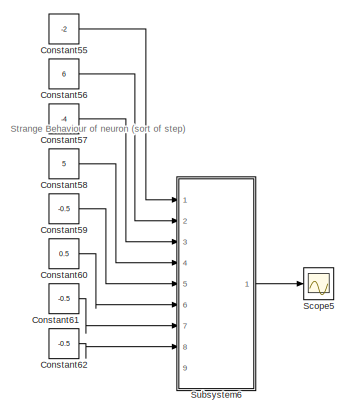
[diagram: root canvas - part 1/4, top right region]
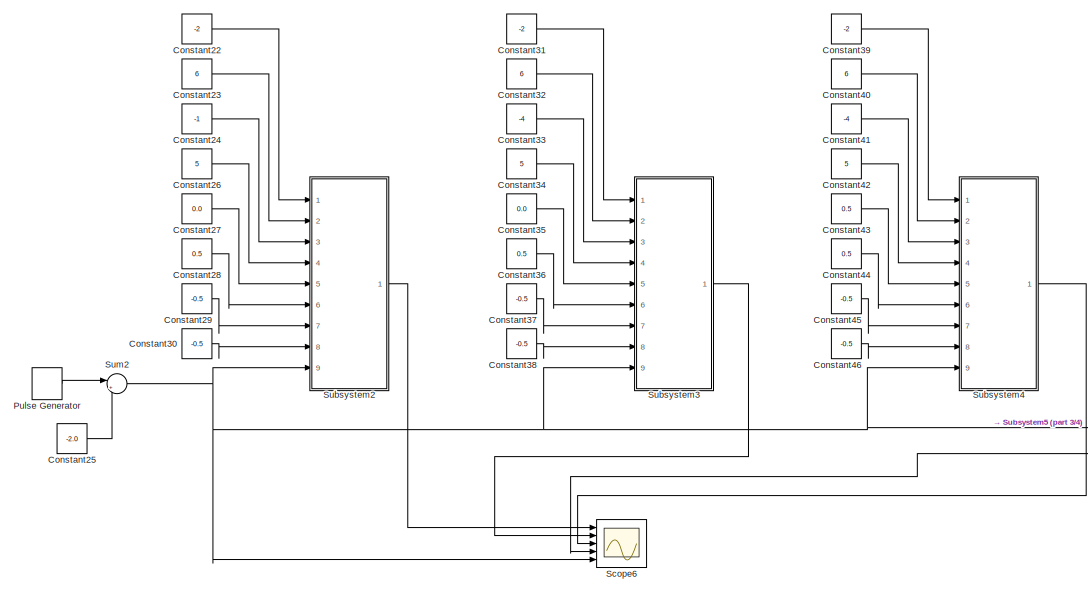
[diagram: root canvas - part 2/4, middle left region]
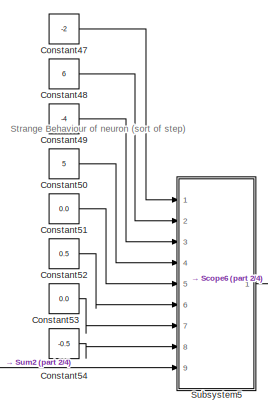
[diagram: root canvas - part 3/4, central region]
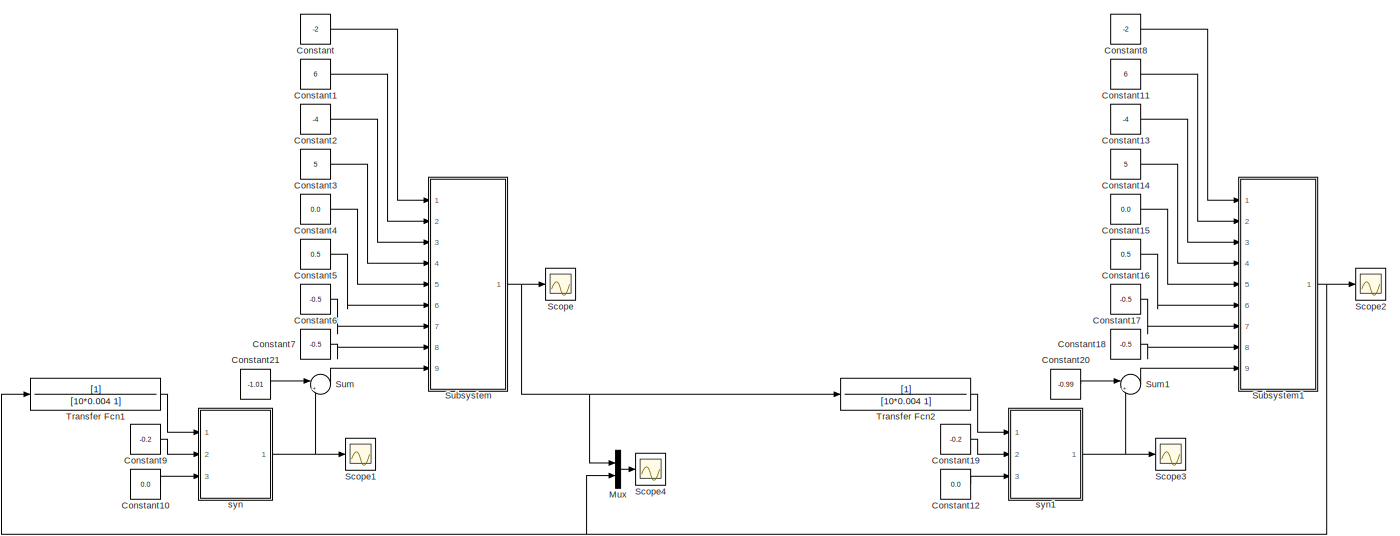
[diagram: root canvas - part 4/4, bottom left region]
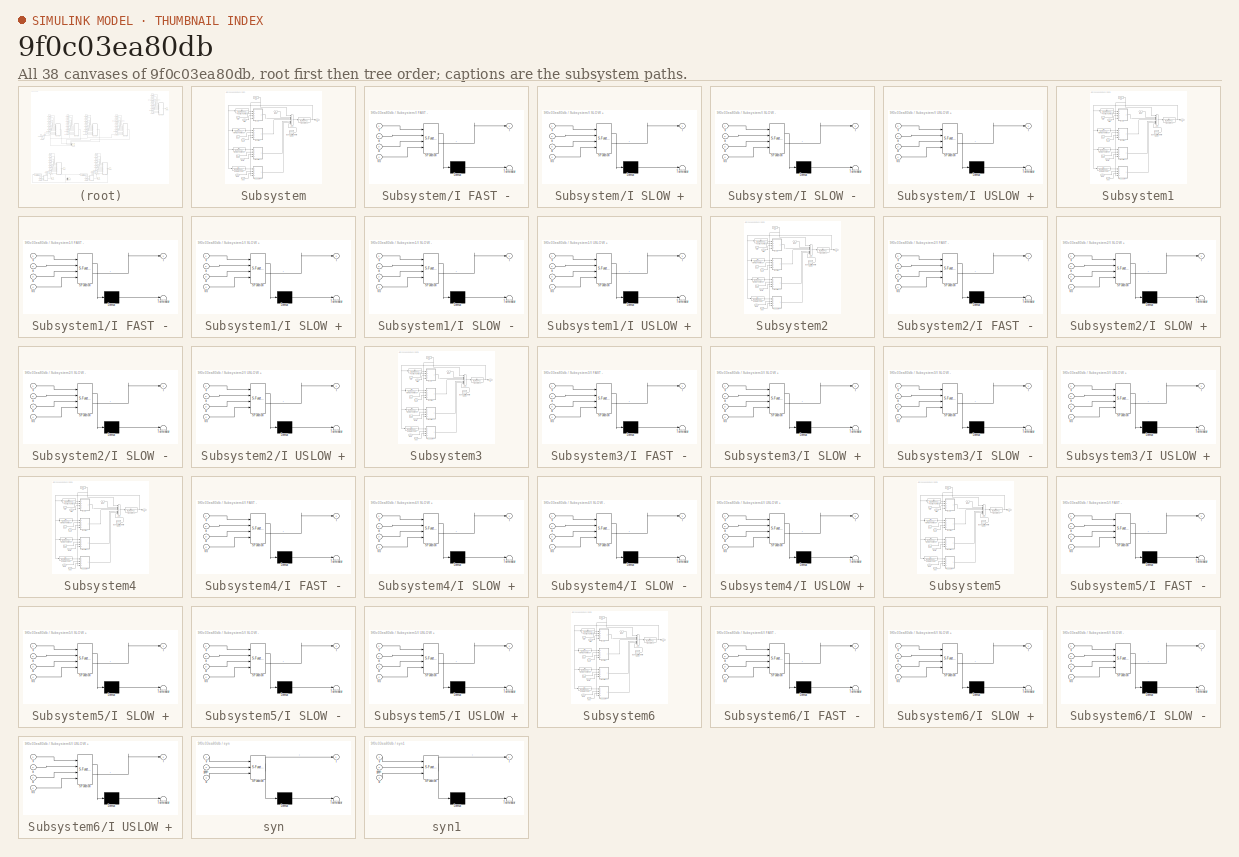
[diagram: thumbnail index - all 38 canvases of the model, root first then tree order]
MODEL slx_9f0c03ea80db
KIND model
CONFIG AbsTol = auto
CONFIG EnableMultiTasking = off
CONFIG FixedStep = auto
CONFIG MaxStep = auto
CONFIG MinStep = auto
CONFIG RelTol = 1e-3
CONFIG SampleTimeConstraint = Unconstrained
CONFIG SolverName = VariableStepAuto
CONFIG StartTime = 0.0
CONFIG StopTime = 30
BLOCK [Constant] Constant
  Value = -2
BLOCK [Constant] Constant1
  Value = 6
BLOCK [Constant] Constant10
  Value = 0.0
BLOCK [Constant] Constant11
  Value = 6
BLOCK [Constant] Constant12
  Value = 0.0
BLOCK [Constant] Constant13
  Value = -4
BLOCK [Constant] Constant14
  Value = 5
BLOCK [Constant] Constant15
  Value = 0.0
BLOCK [Constant] Constant16
  Value = 0.5
BLOCK [Constant] Constant17
  Value = -0.5
BLOCK [Constant] Constant18
  Value = -0.5
BLOCK [Constant] Constant19
  Value = -0.2
BLOCK [Constant] Constant2
  Value = -4
BLOCK [Constant] Constant20
  Value = -0.99
BLOCK [Constant] Constant21
  Value = -1.01
BLOCK [Constant] Constant22
  Value = -2
BLOCK [Constant] Constant23
  Value = 6
BLOCK [Constant] Constant24
  Value = -1
BLOCK [Constant] Constant25
  Value = -2.0
BLOCK [Constant] Constant26
  Value = 5
BLOCK [Constant] Constant27
  Value = 0.0
BLOCK [Constant] Constant28
  Value = 0.5
BLOCK [Constant] Constant29
  Value = -0.5
BLOCK [Constant] Constant3
  Value = 5
BLOCK [Constant] Constant30
  Value = -0.5
BLOCK [Constant] Constant31
  Value = -2
BLOCK [Constant] Constant32
  Value = 6
BLOCK [Constant] Constant33
  Value = -4
BLOCK [Constant] Constant34
  Value = 5
BLOCK [Constant] Constant35
  Value = 0.0
BLOCK [Constant] Constant36
  Value = 0.5
BLOCK [Constant] Constant37
  Value = -0.5
BLOCK [Constant] Constant38
  Value = -0.5
BLOCK [Constant] Constant39
  Value = -2
BLOCK [Constant] Constant4
  Value = 0.0
BLOCK [Constant] Constant40
  Value = 6
BLOCK [Constant] Constant41
  Value = -4
BLOCK [Constant] Constant42
  Value = 5
BLOCK [Constant] Constant43
  Value = 0.5
BLOCK [Constant] Constant44
  Value = 0.5
BLOCK [Constant] Constant45
  Value = -0.5
BLOCK [Constant] Constant46
  Value = -0.5
BLOCK [Constant] Constant47
  Value = -2
BLOCK [Constant] Constant48
  Value = 6
BLOCK [Constant] Constant49
  Value = -4
BLOCK [Constant] Constant5
  Value = 0.5
BLOCK [Constant] Constant50
  Value = 5
BLOCK [Constant] Constant51
  Value = 0.0
BLOCK [Constant] Constant52
  Value = 0.5
BLOCK [Constant] Constant53
  Value = 0.0
BLOCK [Constant] Constant54
  Value = -0.5
BLOCK [Constant] Constant55
  Value = -2
BLOCK [Constant] Constant56
  Value = 6
BLOCK [Constant] Constant57
  Value = -4
BLOCK [Constant] Constant58
  Value = 5
BLOCK [Constant] Constant59
  Value = -0.5
BLOCK [Constant] Constant6
  Value = -0.5
BLOCK [Constant] Constant60
  Value = 0.5
BLOCK [Constant] Constant61
  Value = -0.5
BLOCK [Constant] Constant62
  Value = -0.5
BLOCK [Constant] Constant7
  Value = -0.5
BLOCK [Constant] Constant8
  Value = -2
BLOCK [Constant] Constant9
  Value = -0.2
BLOCK [Mux] Mux
  DisplayOption = bar
  Inputs = 2
  Ports = [2, 1]
BLOCK [DiscretePulseGenerator] Pulse Generator
  Amplitude = 5
  Ports = [0, 1]
  PulseType = Time based
BLOCK [Scope] Scope
  Floating = off
  NumInputPorts = 1
  Ports = [1]
  ScopeSpecificationString = Simulink.scopes.TimeScopeBlockCfg('CurrentConfiguration', extmgr.ConfigurationSet(extmgr.Configuration('Core','General UI',true),extmgr.Configuration('Core','Source UI',true),extmgr.Configuration('Sources','WiredSimulink',true),extmgr.Configuration('Visuals','Time Domain',true,'SerializedDisplays',{struct('MinYLimReal','-4.0521','MaxYLimReal','4.7607','YLabelReal','','MinYLimMag','0.00000','MaxYLi...<+1371ch>
BLOCK [Scope] Scope1
  Floating = off
  NumInputPorts = 1
  Ports = [1]
  ScopeSpecificationString = Simulink.scopes.TimeScopeBlockCfg('CurrentConfiguration', extmgr.ConfigurationSet(extmgr.Configuration('Core','General UI',true),extmgr.Configuration('Core','Source UI',true),extmgr.Configuration('Sources','WiredSimulink',true,'DataLoggingVariableName','ScopeData1'),extmgr.Configuration('Visuals','Time Domain',true,'SerializedDisplays',{struct('MinYLimReal','-0.38276','MaxYLimReal','0.42856','YLab...<+1434ch>
BLOCK [Scope] Scope2
  Floating = off
  NumInputPorts = 1
  Ports = [1]
  ScopeSpecificationString = Simulink.scopes.TimeScopeBlockCfg('CurrentConfiguration', extmgr.ConfigurationSet(extmgr.Configuration('Core','General UI',true),extmgr.Configuration('Core','Source UI',true),extmgr.Configuration('Sources','WiredSimulink',true,'DataLoggingVariableName','ScopeData2'),extmgr.Configuration('Visuals','Time Domain',true,'SerializedDisplays',{struct('MinYLimReal','-7.78674','MaxYLimReal','5.91541','YLab...<+1417ch>
BLOCK [Scope] Scope3
  Floating = off
  NumInputPorts = 1
  Ports = [1]
  ScopeSpecificationString = Simulink.scopes.TimeScopeBlockCfg('CurrentConfiguration', extmgr.ConfigurationSet(extmgr.Configuration('Core','General UI',true),extmgr.Configuration('Core','Source UI',true),extmgr.Configuration('Sources','WiredSimulink',true,'DataLoggingVariableName','ScopeData3'),extmgr.Configuration('Visuals','Time Domain',true,'SerializedDisplays',{struct('MinYLimReal','-0.26054','MaxYLimReal','0.01487','YLab...<+1434ch>
BLOCK [Scope] Scope4
  Floating = off
  NumInputPorts = 1
  Ports = [1]
  ScopeSpecificationString = Simulink.scopes.TimeScopeBlockCfg('CurrentConfiguration', extmgr.ConfigurationSet(extmgr.Configuration('Core','General UI',true),extmgr.Configuration('Core','Source UI',true),extmgr.Configuration('Sources','WiredSimulink',true,'DataLoggingVariableName','ScopeData4'),extmgr.Configuration('Visuals','Time Domain',true,'SerializedDisplays',{struct('MinYLimReal','-9.35544','MaxYLimReal','5.85318','YLab...<+1460ch>
BLOCK [Scope] Scope5
  Floating = off
  NumInputPorts = 1
  Ports = [1]
  ScopeSpecificationString = Simulink.scopes.TimeScopeBlockCfg('CurrentConfiguration', extmgr.ConfigurationSet(extmgr.Configuration('Core','General UI',true),extmgr.Configuration('Core','Source UI',true),extmgr.Configuration('Sources','WiredSimulink',true,'DataLoggingVariableName','ScopeData1'),extmgr.Configuration('Visuals','Time Domain',true,'SerializedDisplays',{struct('MinYLimReal','-9.35544','MaxYLimReal','5.85318','YLab...<+1460ch>
BLOCK [Scope] Scope6
  Floating = off
  NumInputPorts = 5
  Ports = [5]
  ScopeSpecificationString = Simulink.scopes.TimeScopeBlockCfg('CurrentConfiguration', extmgr.ConfigurationSet(extmgr.Configuration('Core','General UI',true),extmgr.Configuration('Core','Source UI',true),extmgr.Configuration('Sources','WiredSimulink',true,'DataLoggingVariableName','ScopeData2'),extmgr.Configuration('Visuals','Time Domain',true,'SerializedDisplays',{struct('MinYLimReal','-8.1357','MaxYLimReal','8.97831','YLabe...<+4791ch>
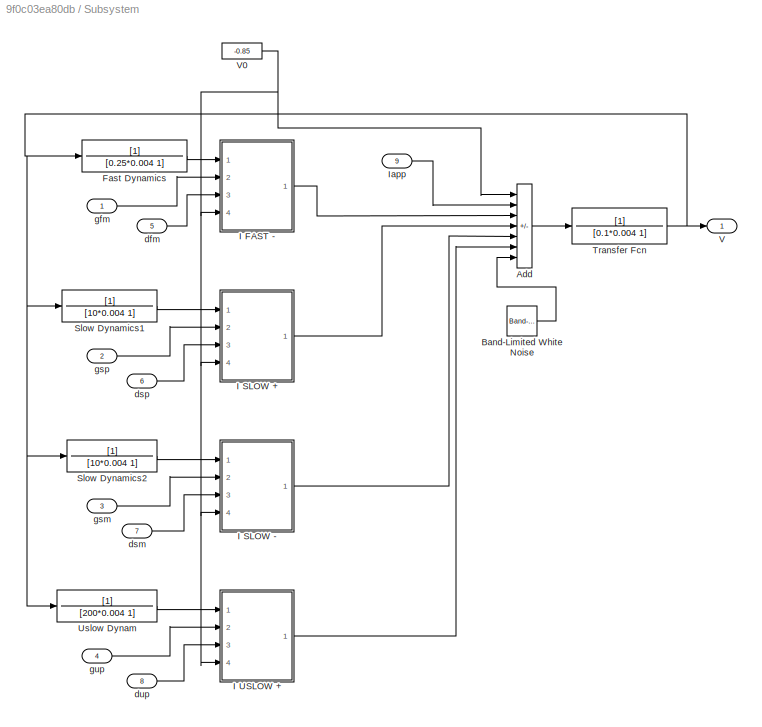
BLOCK [SubSystem] Subsystem
  Ports = [9, 1]
  RequestExecContextInheritance = off
BLOCK [Sum] Subsystem/Add
  IconShape = rectangular
  Inputs = ++----+
  Ports = [7, 1]
BLOCK [Reference] Subsystem/Band-Limited White Noise  REF=simulink/Sources/Band-Limited
White Noise
  Ports = [0, 1]
  SourceBlock = simulink/Sources/Band-Limited\nWhite Noise
  SourceProductBaseCode = SL
  SourceType = Band-Limited White Noise.
BLOCK [TransferFcn] Subsystem/Fast Dynamics
  Denominator = [0.25*0.004 1]
BLOCK [SubSystem] Subsystem/I FAST -
  ErrorFcn = Stateflow.Translate.translate
  PermitHierarchicalResolution = ExplicitOnly
  Ports = [4, 1]
  RequestExecContextInheritance = off
  SFBlockType = MATLAB Function
  TreatAsAtomicUnit = on
BLOCK [Demux] Subsystem/I FAST -/ Demux 
  Outputs = 1
  Ports = [1, 1]
BLOCK [S-Function] Subsystem/I FAST -/ SFunction 
  EnableBusSupport = on
  FunctionName = sf_sfun
  PortCounts = [4 2]
  Ports = [4, 2]
  SFcnIsStateOwnerBlock = off
  SFunctionDeploymentMode = off
  Tag = Stateflow S-Function 2
BLOCK [Terminator] Subsystem/I FAST -/ Terminator 
BLOCK [Outport] Subsystem/I FAST -/I
BLOCK [Inport] Subsystem/I FAST -/V
BLOCK [Inport] Subsystem/I FAST -/V0
  Port = 4
BLOCK [Inport] Subsystem/I FAST -/a
  Port = 2
BLOCK [Inport] Subsystem/I FAST -/d
  Port = 3
BLOCK [SubSystem] Subsystem/I SLOW +
  ErrorFcn = Stateflow.Translate.translate
  PermitHierarchicalResolution = ExplicitOnly
  Ports = [4, 1]
  RequestExecContextInheritance = off
  SFBlockType = MATLAB Function
  TreatAsAtomicUnit = on
BLOCK [Demux] Subsystem/I SLOW +/ Demux 
  Outputs = 1
  Ports = [1, 1]
BLOCK [S-Function] Subsystem/I SLOW +/ SFunction 
  EnableBusSupport = on
  FunctionName = sf_sfun
  PortCounts = [4 2]
  Ports = [4, 2]
  SFcnIsStateOwnerBlock = off
  SFunctionDeploymentMode = off
  Tag = Stateflow S-Function 1
BLOCK [Terminator] Subsystem/I SLOW +/ Terminator 
BLOCK [Outport] Subsystem/I SLOW +/I
BLOCK [Inport] Subsystem/I SLOW +/V
BLOCK [Inport] Subsystem/I SLOW +/V0
  Port = 4
BLOCK [Inport] Subsystem/I SLOW +/a
  Port = 2
BLOCK [Inport] Subsystem/I SLOW +/d
  Port = 3
BLOCK [SubSystem] Subsystem/I SLOW -
  ErrorFcn = Stateflow.Translate.translate
  PermitHierarchicalResolution = ExplicitOnly
  Ports = [4, 1]
  RequestExecContextInheritance = off
  SFBlockType = MATLAB Function
  TreatAsAtomicUnit = on
BLOCK [Demux] Subsystem/I SLOW -/ Demux 
  Outputs = 1
  Ports = [1, 1]
BLOCK [S-Function] Subsystem/I SLOW -/ SFunction 
  EnableBusSupport = on
  FunctionName = sf_sfun
  PortCounts = [4 2]
  Ports = [4, 2]
  SFcnIsStateOwnerBlock = off
  SFunctionDeploymentMode = off
  Tag = Stateflow S-Function 3
BLOCK [Terminator] Subsystem/I SLOW -/ Terminator 
BLOCK [Outport] Subsystem/I SLOW -/I
BLOCK [Inport] Subsystem/I SLOW -/V
BLOCK [Inport] Subsystem/I SLOW -/V0
  Port = 4
BLOCK [Inport] Subsystem/I SLOW -/a
  Port = 2
BLOCK [Inport] Subsystem/I SLOW -/d
  Port = 3
BLOCK [SubSystem] Subsystem/I USLOW +
  ErrorFcn = Stateflow.Translate.translate
  PermitHierarchicalResolution = ExplicitOnly
  Ports = [4, 1]
  RequestExecContextInheritance = off
  SFBlockType = MATLAB Function
  TreatAsAtomicUnit = on
BLOCK [Demux] Subsystem/I USLOW +/ Demux 
  Outputs = 1
  Ports = [1, 1]
BLOCK [S-Function] Subsystem/I USLOW +/ SFunction 
  EnableBusSupport = on
  FunctionName = sf_sfun
  PortCounts = [4 2]
  Ports = [4, 2]
  SFcnIsStateOwnerBlock = off
  SFunctionDeploymentMode = off
  Tag = Stateflow S-Function 4
BLOCK [Terminator] Subsystem/I USLOW +/ Terminator 
BLOCK [Outport] Subsystem/I USLOW +/I
BLOCK [Inport] Subsystem/I USLOW +/V
BLOCK [Inport] Subsystem/I USLOW +/V0
  Port = 4
BLOCK [Inport] Subsystem/I USLOW +/a
  Port = 2
BLOCK [Inport] Subsystem/I USLOW +/d
  Port = 3
BLOCK [Inport] Subsystem/Iapp
  Port = 9
BLOCK [TransferFcn] Subsystem/Slow Dynamics1
  Denominator = [10*0.004 1]
BLOCK [TransferFcn] Subsystem/Slow Dynamics2
  Denominator = [10*0.004 1]
BLOCK [TransferFcn] Subsystem/Transfer Fcn
  Denominator = [0.1*0.004 1]
BLOCK [TransferFcn] Subsystem/Uslow Dynam
  Denominator = [200*0.004 1]
BLOCK [Outport] Subsystem/V
BLOCK [Constant] Subsystem/V0
  Value = -0.85
BLOCK [Inport] Subsystem/dfm
  Port = 5
BLOCK [Inport] Subsystem/dsm
  Port = 7
BLOCK [Inport] Subsystem/dsp
  Port = 6
BLOCK [Inport] Subsystem/dup
  Port = 8
BLOCK [Inport] Subsystem/gfm
BLOCK [Inport] Subsystem/gsm
  Port = 3
BLOCK [Inport] Subsystem/gsp
  Port = 2
BLOCK [Inport] Subsystem/gup
  Port = 4
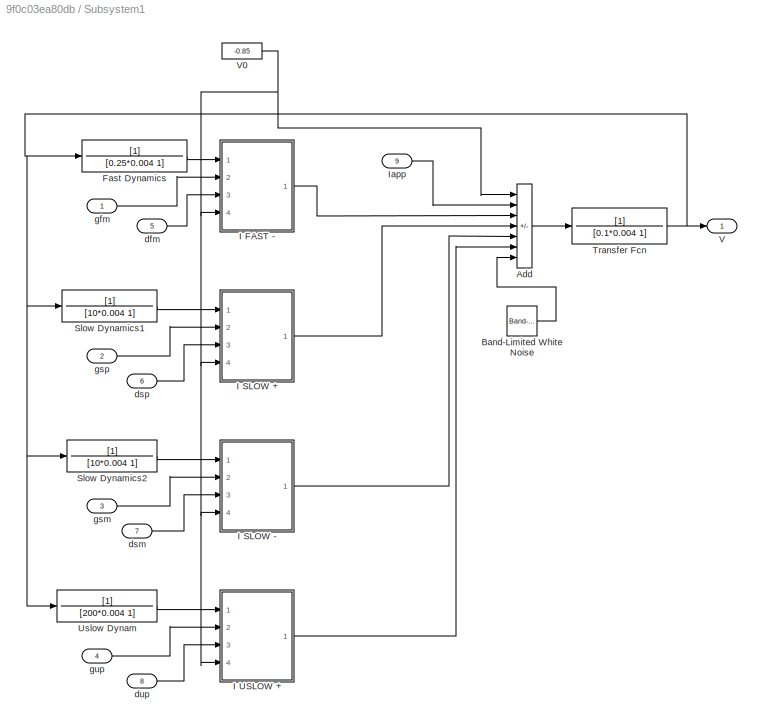
BLOCK [SubSystem] Subsystem1
  Ports = [9, 1]
  RequestExecContextInheritance = off
BLOCK [Sum] Subsystem1/Add
  IconShape = rectangular
  Inputs = ++----+
  Ports = [7, 1]
BLOCK [Reference] Subsystem1/Band-Limited White Noise  REF=simulink/Sources/Band-Limited
White Noise
  Ports = [0, 1]
  SourceBlock = simulink/Sources/Band-Limited\nWhite Noise
  SourceProductBaseCode = SL
  SourceType = Band-Limited White Noise.
BLOCK [TransferFcn] Subsystem1/Fast Dynamics
  Denominator = [0.25*0.004 1]
BLOCK [SubSystem] Subsystem1/I FAST -
  ErrorFcn = Stateflow.Translate.translate
  PermitHierarchicalResolution = ExplicitOnly
  Ports = [4, 1]
  RequestExecContextInheritance = off
  SFBlockType = MATLAB Function
  TreatAsAtomicUnit = on
BLOCK [Demux] Subsystem1/I FAST -/ Demux 
  Outputs = 1
  Ports = [1, 1]
BLOCK [S-Function] Subsystem1/I FAST -/ SFunction 
  EnableBusSupport = on
  FunctionName = sf_sfun
  PortCounts = [4 2]
  Ports = [4, 2]
  SFcnIsStateOwnerBlock = off
  SFunctionDeploymentMode = off
  Tag = Stateflow S-Function 5
BLOCK [Terminator] Subsystem1/I FAST -/ Terminator 
BLOCK [Outport] Subsystem1/I FAST -/I
BLOCK [Inport] Subsystem1/I FAST -/V
BLOCK [Inport] Subsystem1/I FAST -/V0
  Port = 4
BLOCK [Inport] Subsystem1/I FAST -/a
  Port = 2
BLOCK [Inport] Subsystem1/I FAST -/d
  Port = 3
BLOCK [SubSystem] Subsystem1/I SLOW +
  ErrorFcn = Stateflow.Translate.translate
  PermitHierarchicalResolution = ExplicitOnly
  Ports = [4, 1]
  RequestExecContextInheritance = off
  SFBlockType = MATLAB Function
  TreatAsAtomicUnit = on
BLOCK [Demux] Subsystem1/I SLOW +/ Demux 
  Outputs = 1
  Ports = [1, 1]
BLOCK [S-Function] Subsystem1/I SLOW +/ SFunction 
  EnableBusSupport = on
  FunctionName = sf_sfun
  PortCounts = [4 2]
  Ports = [4, 2]
  SFcnIsStateOwnerBlock = off
  SFunctionDeploymentMode = off
  Tag = Stateflow S-Function 6
BLOCK [Terminator] Subsystem1/I SLOW +/ Terminator 
BLOCK [Outport] Subsystem1/I SLOW +/I
BLOCK [Inport] Subsystem1/I SLOW +/V
BLOCK [Inport] Subsystem1/I SLOW +/V0
  Port = 4
BLOCK [Inport] Subsystem1/I SLOW +/a
  Port = 2
BLOCK [Inport] Subsystem1/I SLOW +/d
  Port = 3
BLOCK [SubSystem] Subsystem1/I SLOW -
  ErrorFcn = Stateflow.Translate.translate
  PermitHierarchicalResolution = ExplicitOnly
  Ports = [4, 1]
  RequestExecContextInheritance = off
  SFBlockType = MATLAB Function
  TreatAsAtomicUnit = on
BLOCK [Demux] Subsystem1/I SLOW -/ Demux 
  Outputs = 1
  Ports = [1, 1]
BLOCK [S-Function] Subsystem1/I SLOW -/ SFunction 
  EnableBusSupport = on
  FunctionName = sf_sfun
  PortCounts = [4 2]
  Ports = [4, 2]
  SFcnIsStateOwnerBlock = off
  SFunctionDeploymentMode = off
  Tag = Stateflow S-Function 7
BLOCK [Terminator] Subsystem1/I SLOW -/ Terminator 
BLOCK [Outport] Subsystem1/I SLOW -/I
BLOCK [Inport] Subsystem1/I SLOW -/V
BLOCK [Inport] Subsystem1/I SLOW -/V0
  Port = 4
BLOCK [Inport] Subsystem1/I SLOW -/a
  Port = 2
BLOCK [Inport] Subsystem1/I SLOW -/d
  Port = 3
BLOCK [SubSystem] Subsystem1/I USLOW +
  ErrorFcn = Stateflow.Translate.translate
  PermitHierarchicalResolution = ExplicitOnly
  Ports = [4, 1]
  RequestExecContextInheritance = off
  SFBlockType = MATLAB Function
  TreatAsAtomicUnit = on
BLOCK [Demux] Subsystem1/I USLOW +/ Demux 
  Outputs = 1
  Ports = [1, 1]
BLOCK [S-Function] Subsystem1/I USLOW +/ SFunction 
  EnableBusSupport = on
  FunctionName = sf_sfun
  PortCounts = [4 2]
  Ports = [4, 2]
  SFcnIsStateOwnerBlock = off
  SFunctionDeploymentMode = off
  Tag = Stateflow S-Function 8
BLOCK [Terminator] Subsystem1/I USLOW +/ Terminator 
BLOCK [Outport] Subsystem1/I USLOW +/I
BLOCK [Inport] Subsystem1/I USLOW +/V
BLOCK [Inport] Subsystem1/I USLOW +/V0
  Port = 4
BLOCK [Inport] Subsystem1/I USLOW +/a
  Port = 2
BLOCK [Inport] Subsystem1/I USLOW +/d
  Port = 3
BLOCK [Inport] Subsystem1/Iapp
  Port = 9
BLOCK [TransferFcn] Subsystem1/Slow Dynamics1
  Denominator = [10*0.004 1]
BLOCK [TransferFcn] Subsystem1/Slow Dynamics2
  Denominator = [10*0.004 1]
BLOCK [TransferFcn] Subsystem1/Transfer Fcn
  Denominator = [0.1*0.004 1]
BLOCK [TransferFcn] Subsystem1/Uslow Dynam
  Denominator = [200*0.004 1]
BLOCK [Outport] Subsystem1/V
BLOCK [Constant] Subsystem1/V0
  Value = -0.85
BLOCK [Inport] Subsystem1/dfm
  Port = 5
BLOCK [Inport] Subsystem1/dsm
  Port = 7
BLOCK [Inport] Subsystem1/dsp
  Port = 6
BLOCK [Inport] Subsystem1/dup
  Port = 8
BLOCK [Inport] Subsystem1/gfm
BLOCK [Inport] Subsystem1/gsm
  Port = 3
BLOCK [Inport] Subsystem1/gsp
  Port = 2
BLOCK [Inport] Subsystem1/gup
  Port = 4
BLOCK [SubSystem] Subsystem2
  Ports = [9, 1]
  RequestExecContextInheritance = off
BLOCK [Sum] Subsystem2/Add
  IconShape = rectangular
  Inputs = ++----+
  Ports = [7, 1]
BLOCK [Reference] Subsystem2/Band-Limited White Noise  REF=simulink/Sources/Band-Limited
White Noise
  Ports = [0, 1]
  SourceBlock = simulink/Sources/Band-Limited\nWhite Noise
  SourceProductBaseCode = SL
  SourceType = Band-Limited White Noise.
BLOCK [TransferFcn] Subsystem2/Fast Dynamics
  Denominator = [0.25*0.004 1]
BLOCK [SubSystem] Subsystem2/I FAST -
  ErrorFcn = Stateflow.Translate.translate
  PermitHierarchicalResolution = ExplicitOnly
  Ports = [4, 1]
  RequestExecContextInheritance = off
  SFBlockType = MATLAB Function
  TreatAsAtomicUnit = on
BLOCK [Demux] Subsystem2/I FAST -/ Demux 
  Outputs = 1
  Ports = [1, 1]
BLOCK [S-Function] Subsystem2/I FAST -/ SFunction 
  EnableBusSupport = on
  FunctionName = sf_sfun
  PortCounts = [4 2]
  Ports = [4, 2]
  SFcnIsStateOwnerBlock = off
  SFunctionDeploymentMode = off
  Tag = Stateflow S-Function 11
BLOCK [Terminator] Subsystem2/I FAST -/ Terminator 
BLOCK [Outport] Subsystem2/I FAST -/I
BLOCK [Inport] Subsystem2/I FAST -/V
BLOCK [Inport] Subsystem2/I FAST -/V0
  Port = 4
BLOCK [Inport] Subsystem2/I FAST -/a
  Port = 2
BLOCK [Inport] Subsystem2/I FAST -/d
  Port = 3
BLOCK [SubSystem] Subsystem2/I SLOW +
  ErrorFcn = Stateflow.Translate.translate
  PermitHierarchicalResolution = ExplicitOnly
  Ports = [4, 1]
  RequestExecContextInheritance = off
  SFBlockType = MATLAB Function
  TreatAsAtomicUnit = on
BLOCK [Demux] Subsystem2/I SLOW +/ Demux 
  Outputs = 1
  Ports = [1, 1]
BLOCK [S-Function] Subsystem2/I SLOW +/ SFunction 
  EnableBusSupport = on
  FunctionName = sf_sfun
  PortCounts = [4 2]
  Ports = [4, 2]
  SFcnIsStateOwnerBlock = off
  SFunctionDeploymentMode = off
  Tag = Stateflow S-Function 12
BLOCK [Terminator] Subsystem2/I SLOW +/ Terminator 
BLOCK [Outport] Subsystem2/I SLOW +/I
BLOCK [Inport] Subsystem2/I SLOW +/V
BLOCK [Inport] Subsystem2/I SLOW +/V0
  Port = 4
BLOCK [Inport] Subsystem2/I SLOW +/a
  Port = 2
BLOCK [Inport] Subsystem2/I SLOW +/d
  Port = 3
BLOCK [SubSystem] Subsystem2/I SLOW -
  ErrorFcn = Stateflow.Translate.translate
  PermitHierarchicalResolution = ExplicitOnly
  Ports = [4, 1]
  RequestExecContextInheritance = off
  SFBlockType = MATLAB Function
  TreatAsAtomicUnit = on
BLOCK [Demux] Subsystem2/I SLOW -/ Demux 
  Outputs = 1
  Ports = [1, 1]
BLOCK [S-Function] Subsystem2/I SLOW -/ SFunction 
  EnableBusSupport = on
  FunctionName = sf_sfun
  PortCounts = [4 2]
  Ports = [4, 2]
  SFcnIsStateOwnerBlock = off
  SFunctionDeploymentMode = off
  Tag = Stateflow S-Function 13
BLOCK [Terminator] Subsystem2/I SLOW -/ Terminator 
BLOCK [Outport] Subsystem2/I SLOW -/I
BLOCK [Inport] Subsystem2/I SLOW -/V
BLOCK [Inport] Subsystem2/I SLOW -/V0
  Port = 4
BLOCK [Inport] Subsystem2/I SLOW -/a
  Port = 2
BLOCK [Inport] Subsystem2/I SLOW -/d
  Port = 3
BLOCK [SubSystem] Subsystem2/I USLOW +
  ErrorFcn = Stateflow.Translate.translate
  PermitHierarchicalResolution = ExplicitOnly
  Ports = [4, 1]
  RequestExecContextInheritance = off
  SFBlockType = MATLAB Function
  TreatAsAtomicUnit = on
BLOCK [Demux] Subsystem2/I USLOW +/ Demux 
  Outputs = 1
  Ports = [1, 1]
BLOCK [S-Function] Subsystem2/I USLOW +/ SFunction 
  EnableBusSupport = on
  FunctionName = sf_sfun
  PortCounts = [4 2]
  Ports = [4, 2]
  SFcnIsStateOwnerBlock = off
  SFunctionDeploymentMode = off
  Tag = Stateflow S-Function 14
BLOCK [Terminator] Subsystem2/I USLOW +/ Terminator 
BLOCK [Outport] Subsystem2/I USLOW +/I
BLOCK [Inport] Subsystem2/I USLOW +/V
BLOCK [Inport] Subsystem2/I USLOW +/V0
  Port = 4
BLOCK [Inport] Subsystem2/I USLOW +/a
  Port = 2
BLOCK [Inport] Subsystem2/I USLOW +/d
  Port = 3
BLOCK [Inport] Subsystem2/Iapp
  Port = 9
BLOCK [TransferFcn] Subsystem2/Slow Dynamics1
  Denominator = [10*0.004 1]
BLOCK [TransferFcn] Subsystem2/Slow Dynamics2
  Denominator = [10*0.004 1]
BLOCK [TransferFcn] Subsystem2/Transfer Fcn
  Denominator = [0.1*0.004 1]
BLOCK [TransferFcn] Subsystem2/Uslow Dynam
  Denominator = [200*0.004 1]
BLOCK [Outport] Subsystem2/V
BLOCK [Constant] Subsystem2/V0
  Value = -0.85
BLOCK [Inport] Subsystem2/dfm
  Port = 5
BLOCK [Inport] Subsystem2/dsm
  Port = 7
BLOCK [Inport] Subsystem2/dsp
  Port = 6
BLOCK [Inport] Subsystem2/dup
  Port = 8
BLOCK [Inport] Subsystem2/gfm
BLOCK [Inport] Subsystem2/gsm
  Port = 3
BLOCK [Inport] Subsystem2/gsp
  Port = 2
BLOCK [Inport] Subsystem2/gup
  Port = 4
BLOCK [SubSystem] Subsystem3
  Ports = [9, 1]
  RequestExecContextInheritance = off
BLOCK [Sum] Subsystem3/Add
  IconShape = rectangular
  Inputs = ++----+
  Ports = [7, 1]
BLOCK [Reference] Subsystem3/Band-Limited White Noise  REF=simulink/Sources/Band-Limited
White Noise
  Ports = [0, 1]
  SourceBlock = simulink/Sources/Band-Limited\nWhite Noise
  SourceProductBaseCode = SL
  SourceType = Band-Limited White Noise.
BLOCK [TransferFcn] Subsystem3/Fast Dynamics
  Denominator = [0.25*0.004 1]
BLOCK [SubSystem] Subsystem3/I FAST -
  ErrorFcn = Stateflow.Translate.translate
  PermitHierarchicalResolution = ExplicitOnly
  Ports = [4, 1]
  RequestExecContextInheritance = off
  SFBlockType = MATLAB Function
  TreatAsAtomicUnit = on
BLOCK [Demux] Subsystem3/I FAST -/ Demux 
  Outputs = 1
  Ports = [1, 1]
BLOCK [S-Function] Subsystem3/I FAST -/ SFunction 
  EnableBusSupport = on
  FunctionName = sf_sfun
  PortCounts = [4 2]
  Ports = [4, 2]
  SFcnIsStateOwnerBlock = off
  SFunctionDeploymentMode = off
  Tag = Stateflow S-Function 15
BLOCK [Terminator] Subsystem3/I FAST -/ Terminator 
BLOCK [Outport] Subsystem3/I FAST -/I
BLOCK [Inport] Subsystem3/I FAST -/V
BLOCK [Inport] Subsystem3/I FAST -/V0
  Port = 4
BLOCK [Inport] Subsystem3/I FAST -/a
  Port = 2
BLOCK [Inport] Subsystem3/I FAST -/d
  Port = 3
BLOCK [SubSystem] Subsystem3/I SLOW +
  ErrorFcn = Stateflow.Translate.translate
  PermitHierarchicalResolution = ExplicitOnly
  Ports = [4, 1]
  RequestExecContextInheritance = off
  SFBlockType = MATLAB Function
  TreatAsAtomicUnit = on
BLOCK [Demux] Subsystem3/I SLOW +/ Demux 
  Outputs = 1
  Ports = [1, 1]
BLOCK [S-Function] Subsystem3/I SLOW +/ SFunction 
  EnableBusSupport = on
  FunctionName = sf_sfun
  PortCounts = [4 2]
  Ports = [4, 2]
  SFcnIsStateOwnerBlock = off
  SFunctionDeploymentMode = off
  Tag = Stateflow S-Function 16
BLOCK [Terminator] Subsystem3/I SLOW +/ Terminator 
BLOCK [Outport] Subsystem3/I SLOW +/I
BLOCK [Inport] Subsystem3/I SLOW +/V
BLOCK [Inport] Subsystem3/I SLOW +/V0
  Port = 4
BLOCK [Inport] Subsystem3/I SLOW +/a
  Port = 2
BLOCK [Inport] Subsystem3/I SLOW +/d
  Port = 3
BLOCK [SubSystem] Subsystem3/I SLOW -
  ErrorFcn = Stateflow.Translate.translate
  PermitHierarchicalResolution = ExplicitOnly
  Ports = [4, 1]
  RequestExecContextInheritance = off
  SFBlockType = MATLAB Function
  TreatAsAtomicUnit = on
BLOCK [Demux] Subsystem3/I SLOW -/ Demux 
  Outputs = 1
  Ports = [1, 1]
BLOCK [S-Function] Subsystem3/I SLOW -/ SFunction 
  EnableBusSupport = on
  FunctionName = sf_sfun
  PortCounts = [4 2]
  Ports = [4, 2]
  SFcnIsStateOwnerBlock = off
  SFunctionDeploymentMode = off
  Tag = Stateflow S-Function 17
BLOCK [Terminator] Subsystem3/I SLOW -/ Terminator 
BLOCK [Outport] Subsystem3/I SLOW -/I
BLOCK [Inport] Subsystem3/I SLOW -/V
BLOCK [Inport] Subsystem3/I SLOW -/V0
  Port = 4
BLOCK [Inport] Subsystem3/I SLOW -/a
  Port = 2
BLOCK [Inport] Subsystem3/I SLOW -/d
  Port = 3
BLOCK [SubSystem] Subsystem3/I USLOW +
  ErrorFcn = Stateflow.Translate.translate
  PermitHierarchicalResolution = ExplicitOnly
  Ports = [4, 1]
  RequestExecContextInheritance = off
  SFBlockType = MATLAB Function
  TreatAsAtomicUnit = on
BLOCK [Demux] Subsystem3/I USLOW +/ Demux 
  Outputs = 1
  Ports = [1, 1]
BLOCK [S-Function] Subsystem3/I USLOW +/ SFunction 
  EnableBusSupport = on
  FunctionName = sf_sfun
  PortCounts = [4 2]
  Ports = [4, 2]
  SFcnIsStateOwnerBlock = off
  SFunctionDeploymentMode = off
  Tag = Stateflow S-Function 18
BLOCK [Terminator] Subsystem3/I USLOW +/ Terminator 
BLOCK [Outport] Subsystem3/I USLOW +/I
BLOCK [Inport] Subsystem3/I USLOW +/V
BLOCK [Inport] Subsystem3/I USLOW +/V0
  Port = 4
BLOCK [Inport] Subsystem3/I USLOW +/a
  Port = 2
BLOCK [Inport] Subsystem3/I USLOW +/d
  Port = 3
BLOCK [Inport] Subsystem3/Iapp
  Port = 9
BLOCK [TransferFcn] Subsystem3/Slow Dynamics1
  Denominator = [10*0.004 1]
BLOCK [TransferFcn] Subsystem3/Slow Dynamics2
  Denominator = [10*0.004 1]
BLOCK [TransferFcn] Subsystem3/Transfer Fcn
  Denominator = [0.1*0.004 1]
BLOCK [TransferFcn] Subsystem3/Uslow Dynam
  Denominator = [200*0.004 1]
BLOCK [Outport] Subsystem3/V
BLOCK [Constant] Subsystem3/V0
  Value = -0.85
BLOCK [Inport] Subsystem3/dfm
  Port = 5
BLOCK [Inport] Subsystem3/dsm
  Port = 7
BLOCK [Inport] Subsystem3/dsp
  Port = 6
BLOCK [Inport] Subsystem3/dup
  Port = 8
BLOCK [Inport] Subsystem3/gfm
BLOCK [Inport] Subsystem3/gsm
  Port = 3
BLOCK [Inport] Subsystem3/gsp
  Port = 2
BLOCK [Inport] Subsystem3/gup
  Port = 4
BLOCK [SubSystem] Subsystem4
  Ports = [9, 1]
  RequestExecContextInheritance = off
BLOCK [Sum] Subsystem4/Add
  IconShape = rectangular
  Inputs = ++----+
  Ports = [7, 1]
BLOCK [Reference] Subsystem4/Band-Limited White Noise  REF=simulink/Sources/Band-Limited
White Noise
  Ports = [0, 1]
  SourceBlock = simulink/Sources/Band-Limited\nWhite Noise
  SourceProductBaseCode = SL
  SourceType = Band-Limited White Noise.
BLOCK [TransferFcn] Subsystem4/Fast Dynamics
  Denominator = [0.25*0.004 1]
BLOCK [SubSystem] Subsystem4/I FAST -
  ErrorFcn = Stateflow.Translate.translate
  PermitHierarchicalResolution = ExplicitOnly
  Ports = [4, 1]
  RequestExecContextInheritance = off
  SFBlockType = MATLAB Function
  TreatAsAtomicUnit = on
BLOCK [Demux] Subsystem4/I FAST -/ Demux 
  Outputs = 1
  Ports = [1, 1]
BLOCK [S-Function] Subsystem4/I FAST -/ SFunction 
  EnableBusSupport = on
  FunctionName = sf_sfun
  PortCounts = [4 2]
  Ports = [4, 2]
  SFcnIsStateOwnerBlock = off
  SFunctionDeploymentMode = off
  Tag = Stateflow S-Function 19
BLOCK [Terminator] Subsystem4/I FAST -/ Terminator 
BLOCK [Outport] Subsystem4/I FAST -/I
BLOCK [Inport] Subsystem4/I FAST -/V
BLOCK [Inport] Subsystem4/I FAST -/V0
  Port = 4
BLOCK [Inport] Subsystem4/I FAST -/a
  Port = 2
BLOCK [Inport] Subsystem4/I FAST -/d
  Port = 3
BLOCK [SubSystem] Subsystem4/I SLOW +
  ErrorFcn = Stateflow.Translate.translate
  PermitHierarchicalResolution = ExplicitOnly
  Ports = [4, 1]
  RequestExecContextInheritance = off
  SFBlockType = MATLAB Function
  TreatAsAtomicUnit = on
BLOCK [Demux] Subsystem4/I SLOW +/ Demux 
  Outputs = 1
  Ports = [1, 1]
BLOCK [S-Function] Subsystem4/I SLOW +/ SFunction 
  EnableBusSupport = on
  FunctionName = sf_sfun
  PortCounts = [4 2]
  Ports = [4, 2]
  SFcnIsStateOwnerBlock = off
  SFunctionDeploymentMode = off
  Tag = Stateflow S-Function 20
BLOCK [Terminator] Subsystem4/I SLOW +/ Terminator 
BLOCK [Outport] Subsystem4/I SLOW +/I
BLOCK [Inport] Subsystem4/I SLOW +/V
BLOCK [Inport] Subsystem4/I SLOW +/V0
  Port = 4
BLOCK [Inport] Subsystem4/I SLOW +/a
  Port = 2
BLOCK [Inport] Subsystem4/I SLOW +/d
  Port = 3
BLOCK [SubSystem] Subsystem4/I SLOW -
  ErrorFcn = Stateflow.Translate.translate
  PermitHierarchicalResolution = ExplicitOnly
  Ports = [4, 1]
  RequestExecContextInheritance = off
  SFBlockType = MATLAB Function
  TreatAsAtomicUnit = on
BLOCK [Demux] Subsystem4/I SLOW -/ Demux 
  Outputs = 1
  Ports = [1, 1]
BLOCK [S-Function] Subsystem4/I SLOW -/ SFunction 
  EnableBusSupport = on
  FunctionName = sf_sfun
  PortCounts = [4 2]
  Ports = [4, 2]
  SFcnIsStateOwnerBlock = off
  SFunctionDeploymentMode = off
  Tag = Stateflow S-Function 21
BLOCK [Terminator] Subsystem4/I SLOW -/ Terminator 
BLOCK [Outport] Subsystem4/I SLOW -/I
BLOCK [Inport] Subsystem4/I SLOW -/V
BLOCK [Inport] Subsystem4/I SLOW -/V0
  Port = 4
BLOCK [Inport] Subsystem4/I SLOW -/a
  Port = 2
BLOCK [Inport] Subsystem4/I SLOW -/d
  Port = 3
BLOCK [SubSystem] Subsystem4/I USLOW +
  ErrorFcn = Stateflow.Translate.translate
  PermitHierarchicalResolution = ExplicitOnly
  Ports = [4, 1]
  RequestExecContextInheritance = off
  SFBlockType = MATLAB Function
  TreatAsAtomicUnit = on
BLOCK [Demux] Subsystem4/I USLOW +/ Demux 
  Outputs = 1
  Ports = [1, 1]
BLOCK [S-Function] Subsystem4/I USLOW +/ SFunction 
  EnableBusSupport = on
  FunctionName = sf_sfun
  PortCounts = [4 2]
  Ports = [4, 2]
  SFcnIsStateOwnerBlock = off
  SFunctionDeploymentMode = off
  Tag = Stateflow S-Function 22
BLOCK [Terminator] Subsystem4/I USLOW +/ Terminator 
BLOCK [Outport] Subsystem4/I USLOW +/I
BLOCK [Inport] Subsystem4/I USLOW +/V
BLOCK [Inport] Subsystem4/I USLOW +/V0
  Port = 4
BLOCK [Inport] Subsystem4/I USLOW +/a
  Port = 2
BLOCK [Inport] Subsystem4/I USLOW +/d
  Port = 3
BLOCK [Inport] Subsystem4/Iapp
  Port = 9
BLOCK [TransferFcn] Subsystem4/Slow Dynamics1
  Denominator = [10*0.004 1]
BLOCK [TransferFcn] Subsystem4/Slow Dynamics2
  Denominator = [10*0.004 1]
BLOCK [TransferFcn] Subsystem4/Transfer Fcn
  Denominator = [0.1*0.004 1]
BLOCK [TransferFcn] Subsystem4/Uslow Dynam
  Denominator = [200*0.004 1]
BLOCK [Outport] Subsystem4/V
BLOCK [Constant] Subsystem4/V0
  Value = -0.85
BLOCK [Inport] Subsystem4/dfm
  Port = 5
BLOCK [Inport] Subsystem4/dsm
  Port = 7
BLOCK [Inport] Subsystem4/dsp
  Port = 6
BLOCK [Inport] Subsystem4/dup
  Port = 8
BLOCK [Inport] Subsystem4/gfm
BLOCK [Inport] Subsystem4/gsm
  Port = 3
BLOCK [Inport] Subsystem4/gsp
  Port = 2
BLOCK [Inport] Subsystem4/gup
  Port = 4
BLOCK [SubSystem] Subsystem5
  Ports = [9, 1]
  RequestExecContextInheritance = off
BLOCK [Sum] Subsystem5/Add
  IconShape = rectangular
  Inputs = ++----+
  Ports = [7, 1]
BLOCK [Reference] Subsystem5/Band-Limited White Noise  REF=simulink/Sources/Band-Limited
White Noise
  Ports = [0, 1]
  SourceBlock = simulink/Sources/Band-Limited\nWhite Noise
  SourceProductBaseCode = SL
  SourceType = Band-Limited White Noise.
BLOCK [TransferFcn] Subsystem5/Fast Dynamics
  Denominator = [0.25*0.004 1]
BLOCK [SubSystem] Subsystem5/I FAST -
  ErrorFcn = Stateflow.Translate.translate
  PermitHierarchicalResolution = ExplicitOnly
  Ports = [4, 1]
  RequestExecContextInheritance = off
  SFBlockType = MATLAB Function
  TreatAsAtomicUnit = on
BLOCK [Demux] Subsystem5/I FAST -/ Demux 
  Outputs = 1
  Ports = [1, 1]
BLOCK [S-Function] Subsystem5/I FAST -/ SFunction 
  EnableBusSupport = on
  FunctionName = sf_sfun
  PortCounts = [4 2]
  Ports = [4, 2]
  SFcnIsStateOwnerBlock = off
  SFunctionDeploymentMode = off
  Tag = Stateflow S-Function 23
BLOCK [Terminator] Subsystem5/I FAST -/ Terminator 
BLOCK [Outport] Subsystem5/I FAST -/I
BLOCK [Inport] Subsystem5/I FAST -/V
BLOCK [Inport] Subsystem5/I FAST -/V0
  Port = 4
BLOCK [Inport] Subsystem5/I FAST -/a
  Port = 2
BLOCK [Inport] Subsystem5/I FAST -/d
  Port = 3
BLOCK [SubSystem] Subsystem5/I SLOW +
  ErrorFcn = Stateflow.Translate.translate
  PermitHierarchicalResolution = ExplicitOnly
  Ports = [4, 1]
  RequestExecContextInheritance = off
  SFBlockType = MATLAB Function
  TreatAsAtomicUnit = on
BLOCK [Demux] Subsystem5/I SLOW +/ Demux 
  Outputs = 1
  Ports = [1, 1]
BLOCK [S-Function] Subsystem5/I SLOW +/ SFunction 
  EnableBusSupport = on
  FunctionName = sf_sfun
  PortCounts = [4 2]
  Ports = [4, 2]
  SFcnIsStateOwnerBlock = off
  SFunctionDeploymentMode = off
  Tag = Stateflow S-Function 24
BLOCK [Terminator] Subsystem5/I SLOW +/ Terminator 
BLOCK [Outport] Subsystem5/I SLOW +/I
BLOCK [Inport] Subsystem5/I SLOW +/V
BLOCK [Inport] Subsystem5/I SLOW +/V0
  Port = 4
BLOCK [Inport] Subsystem5/I SLOW +/a
  Port = 2
BLOCK [Inport] Subsystem5/I SLOW +/d
  Port = 3
BLOCK [SubSystem] Subsystem5/I SLOW -
  ErrorFcn = Stateflow.Translate.translate
  PermitHierarchicalResolution = ExplicitOnly
  Ports = [4, 1]
  RequestExecContextInheritance = off
  SFBlockType = MATLAB Function
  TreatAsAtomicUnit = on
BLOCK [Demux] Subsystem5/I SLOW -/ Demux 
  Outputs = 1
  Ports = [1, 1]
BLOCK [S-Function] Subsystem5/I SLOW -/ SFunction 
  EnableBusSupport = on
  FunctionName = sf_sfun
  PortCounts = [4 2]
  Ports = [4, 2]
  SFcnIsStateOwnerBlock = off
  SFunctionDeploymentMode = off
  Tag = Stateflow S-Function 25
BLOCK [Terminator] Subsystem5/I SLOW -/ Terminator 
BLOCK [Outport] Subsystem5/I SLOW -/I
BLOCK [Inport] Subsystem5/I SLOW -/V
BLOCK [Inport] Subsystem5/I SLOW -/V0
  Port = 4
BLOCK [Inport] Subsystem5/I SLOW -/a
  Port = 2
BLOCK [Inport] Subsystem5/I SLOW -/d
  Port = 3
BLOCK [SubSystem] Subsystem5/I USLOW +
  ErrorFcn = Stateflow.Translate.translate
  PermitHierarchicalResolution = ExplicitOnly
  Ports = [4, 1]
  RequestExecContextInheritance = off
  SFBlockType = MATLAB Function
  TreatAsAtomicUnit = on
BLOCK [Demux] Subsystem5/I USLOW +/ Demux 
  Outputs = 1
  Ports = [1, 1]
BLOCK [S-Function] Subsystem5/I USLOW +/ SFunction 
  EnableBusSupport = on
  FunctionName = sf_sfun
  PortCounts = [4 2]
  Ports = [4, 2]
  SFcnIsStateOwnerBlock = off
  SFunctionDeploymentMode = off
  Tag = Stateflow S-Function 26
BLOCK [Terminator] Subsystem5/I USLOW +/ Terminator 
BLOCK [Outport] Subsystem5/I USLOW +/I
BLOCK [Inport] Subsystem5/I USLOW +/V
BLOCK [Inport] Subsystem5/I USLOW +/V0
  Port = 4
BLOCK [Inport] Subsystem5/I USLOW +/a
  Port = 2
BLOCK [Inport] Subsystem5/I USLOW +/d
  Port = 3
BLOCK [Inport] Subsystem5/Iapp
  Port = 9
BLOCK [TransferFcn] Subsystem5/Slow Dynamics1
  Denominator = [10*0.004 1]
BLOCK [TransferFcn] Subsystem5/Slow Dynamics2
  Denominator = [10*0.004 1]
BLOCK [TransferFcn] Subsystem5/Transfer Fcn
  Denominator = [0.1*0.004 1]
BLOCK [TransferFcn] Subsystem5/Uslow Dynam
  Denominator = [200*0.004 1]
BLOCK [Outport] Subsystem5/V
BLOCK [Constant] Subsystem5/V0
  Value = -0.85
BLOCK [Inport] Subsystem5/dfm
  Port = 5
BLOCK [Inport] Subsystem5/dsm
  Port = 7
BLOCK [Inport] Subsystem5/dsp
  Port = 6
BLOCK [Inport] Subsystem5/dup
  Port = 8
BLOCK [Inport] Subsystem5/gfm
BLOCK [Inport] Subsystem5/gsm
  Port = 3
BLOCK [Inport] Subsystem5/gsp
  Port = 2
BLOCK [Inport] Subsystem5/gup
  Port = 4
BLOCK [SubSystem] Subsystem6
  Ports = [9, 1]
  RequestExecContextInheritance = off
BLOCK [Sum] Subsystem6/Add
  IconShape = rectangular
  Inputs = ++----+
  Ports = [7, 1]
BLOCK [Reference] Subsystem6/Band-Limited White Noise  REF=simulink/Sources/Band-Limited
White Noise
  Ports = [0, 1]
  SourceBlock = simulink/Sources/Band-Limited\nWhite Noise
  SourceProductBaseCode = SL
  SourceType = Band-Limited White Noise.
BLOCK [TransferFcn] Subsystem6/Fast Dynamics
  Denominator = [0.25*0.004 1]
BLOCK [SubSystem] Subsystem6/I FAST -
  ErrorFcn = Stateflow.Translate.translate
  PermitHierarchicalResolution = ExplicitOnly
  Ports = [4, 1]
  RequestExecContextInheritance = off
  SFBlockType = MATLAB Function
  TreatAsAtomicUnit = on
BLOCK [Demux] Subsystem6/I FAST -/ Demux 
  Outputs = 1
  Ports = [1, 1]
BLOCK [S-Function] Subsystem6/I FAST -/ SFunction 
  EnableBusSupport = on
  FunctionName = sf_sfun
  PortCounts = [4 2]
  Ports = [4, 2]
  SFcnIsStateOwnerBlock = off
  SFunctionDeploymentMode = off
  Tag = Stateflow S-Function 27
BLOCK [Terminator] Subsystem6/I FAST -/ Terminator 
BLOCK [Outport] Subsystem6/I FAST -/I
BLOCK [Inport] Subsystem6/I FAST -/V
BLOCK [Inport] Subsystem6/I FAST -/V0
  Port = 4
BLOCK [Inport] Subsystem6/I FAST -/a
  Port = 2
BLOCK [Inport] Subsystem6/I FAST -/d
  Port = 3
BLOCK [SubSystem] Subsystem6/I SLOW +
  ErrorFcn = Stateflow.Translate.translate
  PermitHierarchicalResolution = ExplicitOnly
  Ports = [4, 1]
  RequestExecContextInheritance = off
  SFBlockType = MATLAB Function
  TreatAsAtomicUnit = on
BLOCK [Demux] Subsystem6/I SLOW +/ Demux 
  Outputs = 1
  Ports = [1, 1]
BLOCK [S-Function] Subsystem6/I SLOW +/ SFunction 
  EnableBusSupport = on
  FunctionName = sf_sfun
  PortCounts = [4 2]
  Ports = [4, 2]
  SFcnIsStateOwnerBlock = off
  SFunctionDeploymentMode = off
  Tag = Stateflow S-Function 28
BLOCK [Terminator] Subsystem6/I SLOW +/ Terminator 
BLOCK [Outport] Subsystem6/I SLOW +/I
BLOCK [Inport] Subsystem6/I SLOW +/V
BLOCK [Inport] Subsystem6/I SLOW +/V0
  Port = 4
BLOCK [Inport] Subsystem6/I SLOW +/a
  Port = 2
BLOCK [Inport] Subsystem6/I SLOW +/d
  Port = 3
BLOCK [SubSystem] Subsystem6/I SLOW -
  ErrorFcn = Stateflow.Translate.translate
  PermitHierarchicalResolution = ExplicitOnly
  Ports = [4, 1]
  RequestExecContextInheritance = off
  SFBlockType = MATLAB Function
  TreatAsAtomicUnit = on
BLOCK [Demux] Subsystem6/I SLOW -/ Demux 
  Outputs = 1
  Ports = [1, 1]
BLOCK [S-Function] Subsystem6/I SLOW -/ SFunction 
  EnableBusSupport = on
  FunctionName = sf_sfun
  PortCounts = [4 2]
  Ports = [4, 2]
  SFcnIsStateOwnerBlock = off
  SFunctionDeploymentMode = off
  Tag = Stateflow S-Function 29
BLOCK [Terminator] Subsystem6/I SLOW -/ Terminator 
BLOCK [Outport] Subsystem6/I SLOW -/I
BLOCK [Inport] Subsystem6/I SLOW -/V
BLOCK [Inport] Subsystem6/I SLOW -/V0
  Port = 4
BLOCK [Inport] Subsystem6/I SLOW -/a
  Port = 2
BLOCK [Inport] Subsystem6/I SLOW -/d
  Port = 3
BLOCK [SubSystem] Subsystem6/I USLOW +
  ErrorFcn = Stateflow.Translate.translate
  PermitHierarchicalResolution = ExplicitOnly
  Ports = [4, 1]
  RequestExecContextInheritance = off
  SFBlockType = MATLAB Function
  TreatAsAtomicUnit = on
BLOCK [Demux] Subsystem6/I USLOW +/ Demux 
  Outputs = 1
  Ports = [1, 1]
BLOCK [S-Function] Subsystem6/I USLOW +/ SFunction 
  EnableBusSupport = on
  FunctionName = sf_sfun
  PortCounts = [4 2]
  Ports = [4, 2]
  SFcnIsStateOwnerBlock = off
  SFunctionDeploymentMode = off
  Tag = Stateflow S-Function 30
BLOCK [Terminator] Subsystem6/I USLOW +/ Terminator 
BLOCK [Outport] Subsystem6/I USLOW +/I
BLOCK [Inport] Subsystem6/I USLOW +/V
BLOCK [Inport] Subsystem6/I USLOW +/V0
  Port = 4
BLOCK [Inport] Subsystem6/I USLOW +/a
  Port = 2
BLOCK [Inport] Subsystem6/I USLOW +/d
  Port = 3
BLOCK [Inport] Subsystem6/Iapp
  Port = 9
BLOCK [TransferFcn] Subsystem6/Slow Dynamics1
  Denominator = [10*0.004 1]
BLOCK [TransferFcn] Subsystem6/Slow Dynamics2
  Denominator = [10*0.004 1]
BLOCK [TransferFcn] Subsystem6/Transfer Fcn
  Denominator = [0.1*0.004 1]
BLOCK [TransferFcn] Subsystem6/Uslow Dynam
  Denominator = [200*0.004 1]
BLOCK [Outport] Subsystem6/V
BLOCK [Constant] Subsystem6/V0
  Value = -0.85
BLOCK [Inport] Subsystem6/dfm
  Port = 5
BLOCK [Inport] Subsystem6/dsm
  Port = 7
BLOCK [Inport] Subsystem6/dsp
  Port = 6
BLOCK [Inport] Subsystem6/dup
  Port = 8
BLOCK [Inport] Subsystem6/gfm
BLOCK [Inport] Subsystem6/gsm
  Port = 3
BLOCK [Inport] Subsystem6/gsp
  Port = 2
BLOCK [Inport] Subsystem6/gup
  Port = 4
BLOCK [Sum] Sum
  Inputs = |++
  Ports = [2, 1]
BLOCK [Sum] Sum1
  Inputs = |++
  Ports = [2, 1]
BLOCK [Sum] Sum2
  Inputs = |++
  Ports = [2, 1]
BLOCK [TransferFcn] Transfer Fcn1
  Denominator = [10*0.004 1]
BLOCK [TransferFcn] Transfer Fcn2
  Denominator = [10*0.004 1]
BLOCK [SubSystem] syn
  ErrorFcn = Stateflow.Translate.translate
  PermitHierarchicalResolution = ExplicitOnly
  Ports = [3, 1]
  RequestExecContextInheritance = off
  SFBlockType = MATLAB Function
  TreatAsAtomicUnit = on
BLOCK [Demux] syn/ Demux 
  Outputs = 1
  Ports = [1, 1]
BLOCK [S-Function] syn/ SFunction 
  EnableBusSupport = on
  FunctionName = sf_sfun
  PortCounts = [3 2]
  Ports = [3, 2]
  SFcnIsStateOwnerBlock = off
  SFunctionDeploymentMode = off
  Tag = Stateflow S-Function 10
BLOCK [Terminator] syn/ Terminator 
BLOCK [Outport] syn/I
BLOCK [Inport] syn/V
BLOCK [Inport] syn/d
  Port = 3
BLOCK [Inport] syn/gsyn
  Port = 2
BLOCK [SubSystem] syn1
  ErrorFcn = Stateflow.Translate.translate
  PermitHierarchicalResolution = ExplicitOnly
  Ports = [3, 1]
  RequestExecContextInheritance = off
  SFBlockType = MATLAB Function
  TreatAsAtomicUnit = on
BLOCK [Demux] syn1/ Demux 
  Outputs = 1
  Ports = [1, 1]
BLOCK [S-Function] syn1/ SFunction 
  EnableBusSupport = on
  FunctionName = sf_sfun
  PortCounts = [3 2]
  Ports = [3, 2]
  SFcnIsStateOwnerBlock = off
  SFunctionDeploymentMode = off
  Tag = Stateflow S-Function 9
BLOCK [Terminator] syn1/ Terminator 
BLOCK [Outport] syn1/I
BLOCK [Inport] syn1/V
BLOCK [Inport] syn1/d
  Port = 3
BLOCK [Inport] syn1/gsyn
  Port = 2
ANNOTATION (root): Strange Behaviour of neuron (sort of step)
LINE Constant10:1 -> syn:3
LINE Constant11:1 -> Subsystem1:2
LINE Constant12:1 -> syn1:3
LINE Constant13:1 -> Subsystem1:3
LINE Constant14:1 -> Subsystem1:4
LINE Constant15:1 -> Subsystem1:5
LINE Constant16:1 -> Subsystem1:6
LINE Constant17:1 -> Subsystem1:7
LINE Constant18:1 -> Subsystem1:8
LINE Constant19:1 -> syn1:2
LINE Constant1:1 -> Subsystem:2
LINE Constant20:1 -> Sum1:1
LINE Constant21:1 -> Sum:1
LINE Constant22:1 -> Subsystem2:1
LINE Constant23:1 -> Subsystem2:2
LINE Constant24:1 -> Subsystem2:3
LINE Constant25:1 -> Sum2:2
LINE Constant26:1 -> Subsystem2:4
LINE Constant27:1 -> Subsystem2:5
LINE Constant28:1 -> Subsystem2:6
LINE Constant29:1 -> Subsystem2:7
LINE Constant2:1 -> Subsystem:3
LINE Constant30:1 -> Subsystem2:8
LINE Constant31:1 -> Subsystem3:1
LINE Constant32:1 -> Subsystem3:2
LINE Constant33:1 -> Subsystem3:3
LINE Constant34:1 -> Subsystem3:4
LINE Constant35:1 -> Subsystem3:5
LINE Constant36:1 -> Subsystem3:6
LINE Constant37:1 -> Subsystem3:7
LINE Constant38:1 -> Subsystem3:8
LINE Constant39:1 -> Subsystem4:1
LINE Constant3:1 -> Subsystem:4
LINE Constant40:1 -> Subsystem4:2
LINE Constant41:1 -> Subsystem4:3
LINE Constant42:1 -> Subsystem4:4
LINE Constant43:1 -> Subsystem4:5
LINE Constant44:1 -> Subsystem4:6
LINE Constant45:1 -> Subsystem4:7
LINE Constant46:1 -> Subsystem4:8
LINE Constant47:1 -> Subsystem5:1
LINE Constant48:1 -> Subsystem5:2
LINE Constant49:1 -> Subsystem5:3
LINE Constant4:1 -> Subsystem:5
LINE Constant50:1 -> Subsystem5:4
LINE Constant51:1 -> Subsystem5:5
LINE Constant52:1 -> Subsystem5:6
LINE Constant53:1 -> Subsystem5:7
LINE Constant54:1 -> Subsystem5:8
LINE Constant55:1 -> Subsystem6:1
LINE Constant56:1 -> Subsystem6:2
LINE Constant57:1 -> Subsystem6:3
LINE Constant58:1 -> Subsystem6:4
LINE Constant59:1 -> Subsystem6:5
LINE Constant5:1 -> Subsystem:6
LINE Constant60:1 -> Subsystem6:6
LINE Constant61:1 -> Subsystem6:7
LINE Constant62:1 -> Subsystem6:8
LINE Constant6:1 -> Subsystem:7
LINE Constant7:1 -> Subsystem:8
LINE Constant8:1 -> Subsystem1:1
LINE Constant9:1 -> syn:2
LINE Constant:1 -> Subsystem:1
LINE Mux:1 -> Scope4:1
LINE Pulse Generator:1 -> Sum2:1
LINE Subsystem/Add:1 -> Subsystem/Transfer Fcn:1
LINE Subsystem/Band-Limited White Noise:1 -> Subsystem/Add:7
LINE Subsystem/Fast Dynamics:1 -> Subsystem/I FAST -:1
LINE Subsystem/I FAST -:1 -> Subsystem/Add:3
LINE Subsystem/I SLOW +:1 -> Subsystem/Add:4
LINE Subsystem/I SLOW -:1 -> Subsystem/Add:5
LINE Subsystem/I USLOW +:1 -> Subsystem/Add:6
LINE Subsystem/Iapp:1 -> Subsystem/Add:2
LINE Subsystem/Slow Dynamics1:1 -> Subsystem/I SLOW +:1
LINE Subsystem/Slow Dynamics2:1 -> Subsystem/I SLOW -:1
NET Subsystem/Transfer Fcn:1 -> Subsystem/Fast Dynamics:1, Subsystem/Slow Dynamics1:1, Subsystem/Slow Dynamics2:1, Subsystem/Uslow Dynam:1, Subsystem/V:1
LINE Subsystem/Uslow Dynam:1 -> Subsystem/I USLOW +:1
NET Subsystem/V0:1 -> Subsystem/Add:1, Subsystem/I FAST -:4, Subsystem/I SLOW +:4, Subsystem/I SLOW -:4, Subsystem/I USLOW +:4
LINE Subsystem/dfm:1 -> Subsystem/I FAST -:3
LINE Subsystem/dsm:1 -> Subsystem/I SLOW -:3
LINE Subsystem/dsp:1 -> Subsystem/I SLOW +:3
LINE Subsystem/dup:1 -> Subsystem/I USLOW +:3
LINE Subsystem/gfm:1 -> Subsystem/I FAST -:2
LINE Subsystem/gsm:1 -> Subsystem/I SLOW -:2
LINE Subsystem/gsp:1 -> Subsystem/I SLOW +:2
LINE Subsystem/gup:1 -> Subsystem/I USLOW +:2
LINE Subsystem1/Add:1 -> Subsystem1/Transfer Fcn:1
LINE Subsystem1/Band-Limited White Noise:1 -> Subsystem1/Add:7
LINE Subsystem1/Fast Dynamics:1 -> Subsystem1/I FAST -:1
LINE Subsystem1/I FAST -:1 -> Subsystem1/Add:3
LINE Subsystem1/I SLOW +:1 -> Subsystem1/Add:4
LINE Subsystem1/I SLOW -:1 -> Subsystem1/Add:5
LINE Subsystem1/I USLOW +:1 -> Subsystem1/Add:6
LINE Subsystem1/Iapp:1 -> Subsystem1/Add:2
LINE Subsystem1/Slow Dynamics1:1 -> Subsystem1/I SLOW +:1
LINE Subsystem1/Slow Dynamics2:1 -> Subsystem1/I SLOW -:1
NET Subsystem1/Transfer Fcn:1 -> Subsystem1/Fast Dynamics:1, Subsystem1/Slow Dynamics1:1, Subsystem1/Slow Dynamics2:1, Subsystem1/Uslow Dynam:1, Subsystem1/V:1
LINE Subsystem1/Uslow Dynam:1 -> Subsystem1/I USLOW +:1
NET Subsystem1/V0:1 -> Subsystem1/Add:1, Subsystem1/I FAST -:4, Subsystem1/I SLOW +:4, Subsystem1/I SLOW -:4, Subsystem1/I USLOW +:4
LINE Subsystem1/dfm:1 -> Subsystem1/I FAST -:3
LINE Subsystem1/dsm:1 -> Subsystem1/I SLOW -:3
LINE Subsystem1/dsp:1 -> Subsystem1/I SLOW +:3
LINE Subsystem1/dup:1 -> Subsystem1/I USLOW +:3
LINE Subsystem1/gfm:1 -> Subsystem1/I FAST -:2
LINE Subsystem1/gsm:1 -> Subsystem1/I SLOW -:2
LINE Subsystem1/gsp:1 -> Subsystem1/I SLOW +:2
LINE Subsystem1/gup:1 -> Subsystem1/I USLOW +:2
NET Subsystem1:1 -> Mux:2, Scope2:1, Transfer Fcn1:1
LINE Subsystem2/Add:1 -> Subsystem2/Transfer Fcn:1
LINE Subsystem2/Band-Limited White Noise:1 -> Subsystem2/Add:7
LINE Subsystem2/Fast Dynamics:1 -> Subsystem2/I FAST -:1
LINE Subsystem2/I FAST -:1 -> Subsystem2/Add:3
LINE Subsystem2/I SLOW +:1 -> Subsystem2/Add:4
LINE Subsystem2/I SLOW -:1 -> Subsystem2/Add:5
LINE Subsystem2/I USLOW +:1 -> Subsystem2/Add:6
LINE Subsystem2/Iapp:1 -> Subsystem2/Add:2
LINE Subsystem2/Slow Dynamics1:1 -> Subsystem2/I SLOW +:1
LINE Subsystem2/Slow Dynamics2:1 -> Subsystem2/I SLOW -:1
NET Subsystem2/Transfer Fcn:1 -> Subsystem2/Fast Dynamics:1, Subsystem2/Slow Dynamics1:1, Subsystem2/Slow Dynamics2:1, Subsystem2/Uslow Dynam:1, Subsystem2/V:1
LINE Subsystem2/Uslow Dynam:1 -> Subsystem2/I USLOW +:1
NET Subsystem2/V0:1 -> Subsystem2/Add:1, Subsystem2/I FAST -:4, Subsystem2/I SLOW +:4, Subsystem2/I SLOW -:4, Subsystem2/I USLOW +:4
LINE Subsystem2/dfm:1 -> Subsystem2/I FAST -:3
LINE Subsystem2/dsm:1 -> Subsystem2/I SLOW -:3
LINE Subsystem2/dsp:1 -> Subsystem2/I SLOW +:3
LINE Subsystem2/dup:1 -> Subsystem2/I USLOW +:3
LINE Subsystem2/gfm:1 -> Subsystem2/I FAST -:2
LINE Subsystem2/gsm:1 -> Subsystem2/I SLOW -:2
LINE Subsystem2/gsp:1 -> Subsystem2/I SLOW +:2
LINE Subsystem2/gup:1 -> Subsystem2/I USLOW +:2
LINE Subsystem2:1 -> Scope6:1
LINE Subsystem3/Add:1 -> Subsystem3/Transfer Fcn:1
LINE Subsystem3/Band-Limited White Noise:1 -> Subsystem3/Add:7
LINE Subsystem3/Fast Dynamics:1 -> Subsystem3/I FAST -:1
LINE Subsystem3/I FAST -:1 -> Subsystem3/Add:3
LINE Subsystem3/I SLOW +:1 -> Subsystem3/Add:4
LINE Subsystem3/I SLOW -:1 -> Subsystem3/Add:5
LINE Subsystem3/I USLOW +:1 -> Subsystem3/Add:6
LINE Subsystem3/Iapp:1 -> Subsystem3/Add:2
LINE Subsystem3/Slow Dynamics1:1 -> Subsystem3/I SLOW +:1
LINE Subsystem3/Slow Dynamics2:1 -> Subsystem3/I SLOW -:1
NET Subsystem3/Transfer Fcn:1 -> Subsystem3/Fast Dynamics:1, Subsystem3/Slow Dynamics1:1, Subsystem3/Slow Dynamics2:1, Subsystem3/Uslow Dynam:1, Subsystem3/V:1
LINE Subsystem3/Uslow Dynam:1 -> Subsystem3/I USLOW +:1
NET Subsystem3/V0:1 -> Subsystem3/Add:1, Subsystem3/I FAST -:4, Subsystem3/I SLOW +:4, Subsystem3/I SLOW -:4, Subsystem3/I USLOW +:4
LINE Subsystem3/dfm:1 -> Subsystem3/I FAST -:3
LINE Subsystem3/dsm:1 -> Subsystem3/I SLOW -:3
LINE Subsystem3/dsp:1 -> Subsystem3/I SLOW +:3
LINE Subsystem3/dup:1 -> Subsystem3/I USLOW +:3
LINE Subsystem3/gfm:1 -> Subsystem3/I FAST -:2
LINE Subsystem3/gsm:1 -> Subsystem3/I SLOW -:2
LINE Subsystem3/gsp:1 -> Subsystem3/I SLOW +:2
LINE Subsystem3/gup:1 -> Subsystem3/I USLOW +:2
LINE Subsystem3:1 -> Scope6:2
LINE Subsystem4/Add:1 -> Subsystem4/Transfer Fcn:1
LINE Subsystem4/Band-Limited White Noise:1 -> Subsystem4/Add:7
LINE Subsystem4/Fast Dynamics:1 -> Subsystem4/I FAST -:1
LINE Subsystem4/I FAST -:1 -> Subsystem4/Add:3
LINE Subsystem4/I SLOW +:1 -> Subsystem4/Add:4
LINE Subsystem4/I SLOW -:1 -> Subsystem4/Add:5
LINE Subsystem4/I USLOW +:1 -> Subsystem4/Add:6
LINE Subsystem4/Iapp:1 -> Subsystem4/Add:2
LINE Subsystem4/Slow Dynamics1:1 -> Subsystem4/I SLOW +:1
LINE Subsystem4/Slow Dynamics2:1 -> Subsystem4/I SLOW -:1
NET Subsystem4/Transfer Fcn:1 -> Subsystem4/Fast Dynamics:1, Subsystem4/Slow Dynamics1:1, Subsystem4/Slow Dynamics2:1, Subsystem4/Uslow Dynam:1, Subsystem4/V:1
LINE Subsystem4/Uslow Dynam:1 -> Subsystem4/I USLOW +:1
NET Subsystem4/V0:1 -> Subsystem4/Add:1, Subsystem4/I FAST -:4, Subsystem4/I SLOW +:4, Subsystem4/I SLOW -:4, Subsystem4/I USLOW +:4
LINE Subsystem4/dfm:1 -> Subsystem4/I FAST -:3
LINE Subsystem4/dsm:1 -> Subsystem4/I SLOW -:3
LINE Subsystem4/dsp:1 -> Subsystem4/I SLOW +:3
LINE Subsystem4/dup:1 -> Subsystem4/I USLOW +:3
LINE Subsystem4/gfm:1 -> Subsystem4/I FAST -:2
LINE Subsystem4/gsm:1 -> Subsystem4/I SLOW -:2
LINE Subsystem4/gsp:1 -> Subsystem4/I SLOW +:2
LINE Subsystem4/gup:1 -> Subsystem4/I USLOW +:2
LINE Subsystem4:1 -> Scope6:3
LINE Subsystem5/Add:1 -> Subsystem5/Transfer Fcn:1
LINE Subsystem5/Band-Limited White Noise:1 -> Subsystem5/Add:7
LINE Subsystem5/Fast Dynamics:1 -> Subsystem5/I FAST -:1
LINE Subsystem5/I FAST -:1 -> Subsystem5/Add:3
LINE Subsystem5/I SLOW +:1 -> Subsystem5/Add:4
LINE Subsystem5/I SLOW -:1 -> Subsystem5/Add:5
LINE Subsystem5/I USLOW +:1 -> Subsystem5/Add:6
LINE Subsystem5/Iapp:1 -> Subsystem5/Add:2
LINE Subsystem5/Slow Dynamics1:1 -> Subsystem5/I SLOW +:1
LINE Subsystem5/Slow Dynamics2:1 -> Subsystem5/I SLOW -:1
NET Subsystem5/Transfer Fcn:1 -> Subsystem5/Fast Dynamics:1, Subsystem5/Slow Dynamics1:1, Subsystem5/Slow Dynamics2:1, Subsystem5/Uslow Dynam:1, Subsystem5/V:1
LINE Subsystem5/Uslow Dynam:1 -> Subsystem5/I USLOW +:1
NET Subsystem5/V0:1 -> Subsystem5/Add:1, Subsystem5/I FAST -:4, Subsystem5/I SLOW +:4, Subsystem5/I SLOW -:4, Subsystem5/I USLOW +:4
LINE Subsystem5/dfm:1 -> Subsystem5/I FAST -:3
LINE Subsystem5/dsm:1 -> Subsystem5/I SLOW -:3
LINE Subsystem5/dsp:1 -> Subsystem5/I SLOW +:3
LINE Subsystem5/dup:1 -> Subsystem5/I USLOW +:3
LINE Subsystem5/gfm:1 -> Subsystem5/I FAST -:2
LINE Subsystem5/gsm:1 -> Subsystem5/I SLOW -:2
LINE Subsystem5/gsp:1 -> Subsystem5/I SLOW +:2
LINE Subsystem5/gup:1 -> Subsystem5/I USLOW +:2
LINE Subsystem5:1 -> Scope6:4
LINE Subsystem6/Add:1 -> Subsystem6/Transfer Fcn:1
LINE Subsystem6/Band-Limited White Noise:1 -> Subsystem6/Add:7
LINE Subsystem6/Fast Dynamics:1 -> Subsystem6/I FAST -:1
LINE Subsystem6/I FAST -:1 -> Subsystem6/Add:3
LINE Subsystem6/I SLOW +:1 -> Subsystem6/Add:4
LINE Subsystem6/I SLOW -:1 -> Subsystem6/Add:5
LINE Subsystem6/I USLOW +:1 -> Subsystem6/Add:6
LINE Subsystem6/Iapp:1 -> Subsystem6/Add:2
LINE Subsystem6/Slow Dynamics1:1 -> Subsystem6/I SLOW +:1
LINE Subsystem6/Slow Dynamics2:1 -> Subsystem6/I SLOW -:1
NET Subsystem6/Transfer Fcn:1 -> Subsystem6/Fast Dynamics:1, Subsystem6/Slow Dynamics1:1, Subsystem6/Slow Dynamics2:1, Subsystem6/Uslow Dynam:1, Subsystem6/V:1
LINE Subsystem6/Uslow Dynam:1 -> Subsystem6/I USLOW +:1
NET Subsystem6/V0:1 -> Subsystem6/Add:1, Subsystem6/I FAST -:4, Subsystem6/I SLOW +:4, Subsystem6/I SLOW -:4, Subsystem6/I USLOW +:4
LINE Subsystem6/dfm:1 -> Subsystem6/I FAST -:3
LINE Subsystem6/dsm:1 -> Subsystem6/I SLOW -:3
LINE Subsystem6/dsp:1 -> Subsystem6/I SLOW +:3
LINE Subsystem6/dup:1 -> Subsystem6/I USLOW +:3
LINE Subsystem6/gfm:1 -> Subsystem6/I FAST -:2
LINE Subsystem6/gsm:1 -> Subsystem6/I SLOW -:2
LINE Subsystem6/gsp:1 -> Subsystem6/I SLOW +:2
LINE Subsystem6/gup:1 -> Subsystem6/I USLOW +:2
LINE Subsystem6:1 -> Scope5:1
NET Subsystem:1 -> Mux:1, Scope:1, Transfer Fcn2:1
LINE Sum1:1 -> Subsystem1:9
NET Sum2:1 -> Scope6:5, Subsystem2:9, Subsystem3:9, Subsystem4:9, Subsystem5:9
LINE Sum:1 -> Subsystem:9
LINE Transfer Fcn1:1 -> syn:1
LINE Transfer Fcn2:1 -> syn1:1
NET syn1:1 -> Scope3:1, Sum1:2
NET syn:1 -> Scope1:1, Sum:2
note: NET lines group one-source signal fan-out (src -> all destinations, sorted); 1:1 wires keep LINE
CHART Subsystem/I SLOW + states=1 transitions=1
  STATE_LABEL 'eML_blk_kernel()'
  STATE_LABEL 'SCRIPT:\nfunction I = fcn(V,a,d,V0)\n\nI = a*(tanh(V-d)-tanh(V0-d));\n'
CHART Subsystem2/I FAST - states=1 transitions=1
  STATE_LABEL 'eML_blk_kernel()'
  STATE_LABEL 'SCRIPT:\nfunction I = fcn(V,a,d,V0)\n\nI = a*(tanh(V-d)-tanh(V0-d));\n'
CHART Subsystem2/I SLOW + states=1 transitions=1
  STATE_LABEL 'eML_blk_kernel()'
  STATE_LABEL 'SCRIPT:\nfunction I = fcn(V,a,d,V0)\n\nI = a*(tanh(V-d)-tanh(V0-d));\n'
CHART Subsystem2/I SLOW - states=1 transitions=1
  STATE_LABEL 'eML_blk_kernel()'
  STATE_LABEL 'SCRIPT:\nfunction I = fcn(V,a,d,V0)\n\nI = a*(tanh(V-d)-tanh(V0-d));\n'
CHART Subsystem2/I USLOW + states=1 transitions=1
  STATE_LABEL 'eML_blk_kernel()'
  STATE_LABEL 'SCRIPT:\nfunction I = fcn(V,a,d,V0)\n\nI = a*(tanh(V-d)-tanh(V0-d));\n'
CHART Subsystem3/I FAST - states=1 transitions=1
  STATE_LABEL 'eML_blk_kernel()'
  STATE_LABEL 'SCRIPT:\nfunction I = fcn(V,a,d,V0)\n\nI = a*(tanh(V-d)-tanh(V0-d));\n'
CHART Subsystem3/I SLOW + states=1 transitions=1
  STATE_LABEL 'eML_blk_kernel()'
  STATE_LABEL 'SCRIPT:\nfunction I = fcn(V,a,d,V0)\n\nI = a*(tanh(V-d)-tanh(V0-d));\n'
CHART Subsystem3/I SLOW - states=1 transitions=1
  STATE_LABEL 'eML_blk_kernel()'
  STATE_LABEL 'SCRIPT:\nfunction I = fcn(V,a,d,V0)\n\nI = a*(tanh(V-d)-tanh(V0-d));\n'
CHART Subsystem3/I USLOW + states=1 transitions=1
  STATE_LABEL 'eML_blk_kernel()'
  STATE_LABEL 'SCRIPT:\nfunction I = fcn(V,a,d,V0)\n\nI = a*(tanh(V-d)-tanh(V0-d));\n'
CHART Subsystem4/I FAST - states=1 transitions=1
  STATE_LABEL 'eML_blk_kernel()'
  STATE_LABEL 'SCRIPT:\nfunction I = fcn(V,a,d,V0)\n\nI = a*(tanh(V-d)-tanh(V0-d));\n'
CHART Subsystem4/I SLOW + states=1 transitions=1
  STATE_LABEL 'eML_blk_kernel()'
  STATE_LABEL 'SCRIPT:\nfunction I = fcn(V,a,d,V0)\n\nI = a*(tanh(V-d)-tanh(V0-d));\n'
CHART Subsystem/I FAST - states=1 transitions=1
  STATE_LABEL 'eML_blk_kernel()'
  STATE_LABEL 'SCRIPT:\nfunction I = fcn(V,a,d,V0)\n\nI = a*(tanh(V-d)-tanh(V0-d));\n'
CHART Subsystem4/I SLOW - states=1 transitions=1
  STATE_LABEL 'eML_blk_kernel()'
  STATE_LABEL 'SCRIPT:\nfunction I = fcn(V,a,d,V0)\n\nI = a*(tanh(V-d)-tanh(V0-d));\n'
CHART Subsystem4/I USLOW + states=1 transitions=1
  STATE_LABEL 'eML_blk_kernel()'
  STATE_LABEL 'SCRIPT:\nfunction I = fcn(V,a,d,V0)\n\nI = a*(tanh(V-d)-tanh(V0-d));\n'
CHART Subsystem5/I FAST - states=1 transitions=1
  STATE_LABEL 'eML_blk_kernel()'
  STATE_LABEL 'SCRIPT:\nfunction I = fcn(V,a,d,V0)\n\nI = a*(tanh(V-d)-tanh(V0-d));\n'
CHART Subsystem5/I SLOW + states=1 transitions=1
  STATE_LABEL 'eML_blk_kernel()'
  STATE_LABEL 'SCRIPT:\nfunction I = fcn(V,a,d,V0)\n\nI = a*(tanh(V-d)-tanh(V0-d));\n'
CHART Subsystem5/I SLOW - states=1 transitions=1
  STATE_LABEL 'eML_blk_kernel()'
  STATE_LABEL 'SCRIPT:\nfunction I = fcn(V,a,d,V0)\n\nI = a*(tanh(V-d)-tanh(V0-d));\n'
CHART Subsystem5/I USLOW + states=1 transitions=1
  STATE_LABEL 'eML_blk_kernel()'
  STATE_LABEL 'SCRIPT:\nfunction I = fcn(V,a,d,V0)\n\nI = a*(tanh(V-d)-tanh(V0-d));\n'
CHART Subsystem6/I FAST - states=1 transitions=1
  STATE_LABEL 'eML_blk_kernel()'
  STATE_LABEL 'SCRIPT:\nfunction I = fcn(V,a,d,V0)\n\nI = a*(tanh(V-d)-tanh(V0-d));\n'
CHART Subsystem6/I SLOW + states=1 transitions=1
  STATE_LABEL 'eML_blk_kernel()'
  STATE_LABEL 'SCRIPT:\nfunction I = fcn(V,a,d,V0)\n\nI = a*(tanh(V-d)-tanh(V0-d));\n'
CHART Subsystem6/I SLOW - states=1 transitions=1
  STATE_LABEL 'eML_blk_kernel()'
  STATE_LABEL 'SCRIPT:\nfunction I = fcn(V,a,d,V0)\n\nI = a*(tanh(V-d)-tanh(V0-d));\n'
CHART Subsystem6/I USLOW + states=1 transitions=1
  STATE_LABEL 'eML_blk_kernel()'
  STATE_LABEL 'SCRIPT:\nfunction I = fcn(V,a,d,V0)\n\nI = a*(tanh(V-d)-tanh(V0-d));\n'
CHART Subsystem/I SLOW - states=1 transitions=1
  STATE_LABEL 'eML_blk_kernel()'
  STATE_LABEL 'SCRIPT:\nfunction I = fcn(V,a,d,V0)\n\nI = a*(tanh(V-d)-tanh(V0-d));\n'
CHART Subsystem/I USLOW + states=1 transitions=1
  STATE_LABEL 'eML_blk_kernel()'
  STATE_LABEL 'SCRIPT:\nfunction I = fcn(V,a,d,V0)\n\nI = a*(tanh(V-d)-tanh(V0-d));\n'
CHART Subsystem1/I FAST - states=1 transitions=1
  STATE_LABEL 'eML_blk_kernel()'
  STATE_LABEL 'SCRIPT:\nfunction I = fcn(V,a,d,V0)\n\nI = a*(tanh(V-d)-tanh(V0-d));\n'
CHART Subsystem1/I SLOW + states=1 transitions=1
  STATE_LABEL 'eML_blk_kernel()'
  STATE_LABEL 'SCRIPT:\nfunction I = fcn(V,a,d,V0)\n\nI = a*(tanh(V-d)-tanh(V0-d));\n'
CHART Subsystem1/I SLOW - states=1 transitions=1
  STATE_LABEL 'eML_blk_kernel()'
  STATE_LABEL 'SCRIPT:\nfunction I = fcn(V,a,d,V0)\n\nI = a*(tanh(V-d)-tanh(V0-d));\n'
CHART Subsystem1/I USLOW + states=1 transitions=1
  STATE_LABEL 'eML_blk_kernel()'
  STATE_LABEL 'SCRIPT:\nfunction I = fcn(V,a,d,V0)\n\nI = a*(tanh(V-d)-tanh(V0-d));\n'
CHART syn1 states=1 transitions=1
  STATE_LABEL 'eML_blk_kernel()'
  STATE_LABEL 'SCRIPT:\nfunction I = fcn(V,gsyn,d)\n\nI = gsyn*(tanh(2*(V-d))+1)/2;\n'
CHART syn states=1 transitions=1
  STATE_LABEL 'eML_blk_kernel()'
  STATE_LABEL 'SCRIPT:\nfunction I = fcn(V,gsyn,d)\n\nI = gsyn*(tanh(2*(V-d))+1)/2;\n'
CHART  states=0 transitions=0
CHART  states=0 transitions=0
CHART  states=0 transitions=0
CHART  states=0 transitions=0
CHART  states=0 transitions=0
CHART  states=0 transitions=0
CHART  states=0 transitions=0
CHART  states=0 transitions=0
CHART  states=0 transitions=0
CHART  states=0 transitions=0
CHART  states=0 transitions=0
CHART  states=0 transitions=0
CHART  states=0 transitions=0
CHART  states=0 transitions=0
CHART  states=0 transitions=0
CHART  states=0 transitions=0
CHART  states=0 transitions=0
CHART  states=0 transitions=0
CHART  states=0 transitions=0
CHART  states=0 transitions=0
CHART  states=0 transitions=0
CHART  states=0 transitions=0
CHART  states=0 transitions=0
CHART  states=0 transitions=0
CHART  states=0 transitions=0
CHART  states=0 transitions=0
CHART  states=0 transitions=0
CHART  states=0 transitions=0
CHART  states=0 transitions=0
CHART  states=0 transitions=0
